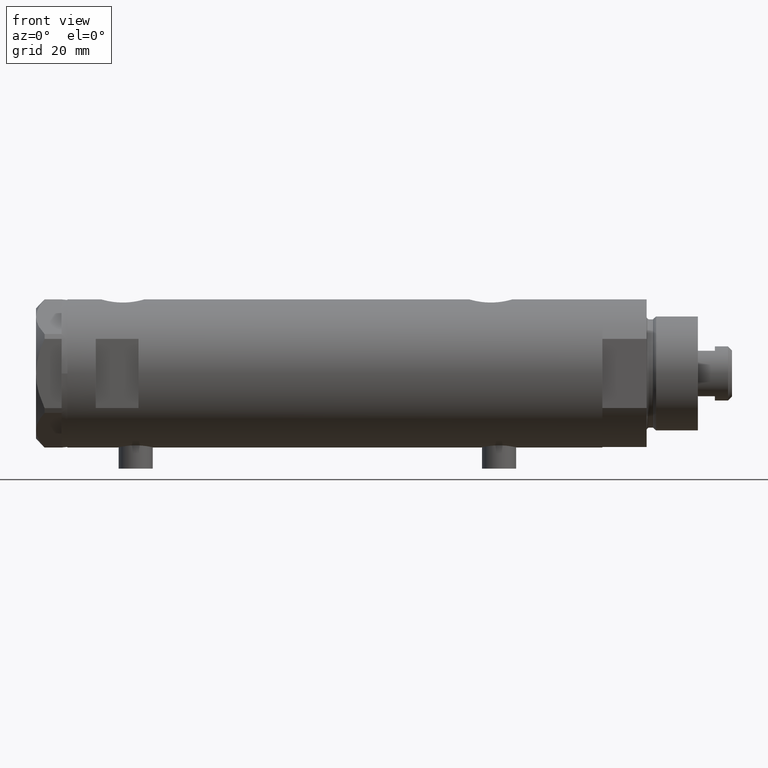
[diagram: clean part render]
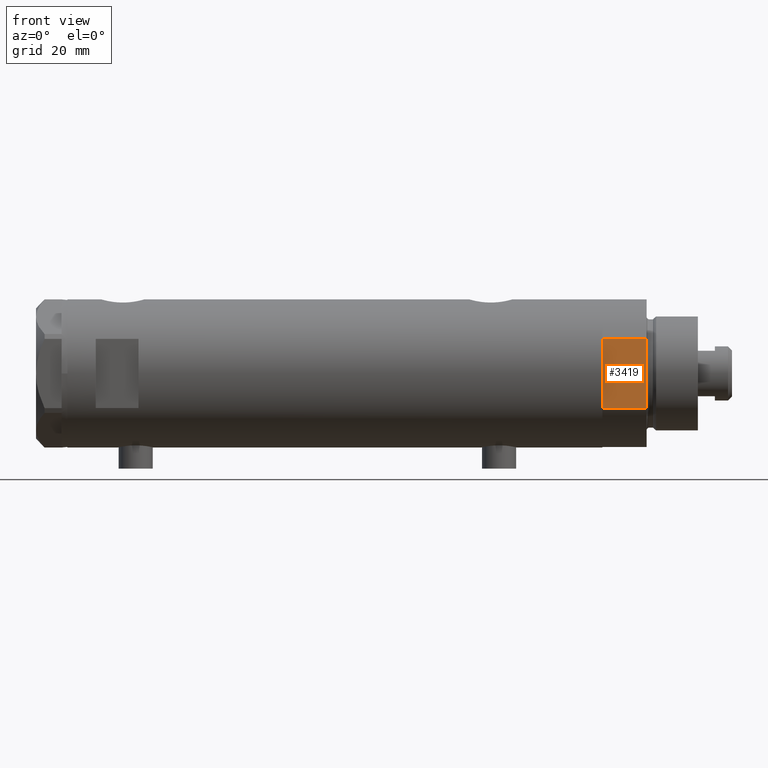
[diagram: same view with one face highlighted and labeled with its STEP entity id]
A machine part, front view. The second image highlights one B-rep face of the part: STEP entity #3419.
In plain terms, the highlighted planar face has unit normal (-0, 1, 0).
Its self-contained STEP definition (entity closure, byte-faithful):
#31 = EDGE_CURVE ( 'NONE', #841, #1377, #3502, .T. ) ;
#69 = AXIS2_PLACEMENT_3D ( 'NONE', #409, #4836, #4138 ) ;
#101 = CARTESIAN_POINT ( 'NONE',  ( 12.12435565298215323, -22.99999999999999645, 0.000000000000000000 ) ) ;
#394 = LINE ( 'NONE', #3010, #4615 ) ;
#409 = CARTESIAN_POINT ( 'NONE',  ( -12.12435565298215145, -22.99999999999999645, 0.000000000000000000 ) ) ;
#765 = LINE ( 'NONE', #4459, #1339 ) ;
#841 = VERTEX_POINT ( 'NONE', #3595 ) ;
#1076 = CARTESIAN_POINT ( 'NONE',  ( -12.12435565298215501, -22.99999999999999645, 0.000000000000000000 ) ) ;
#1085 = DIRECTION ( 'NONE',  ( -0.000000000000000000, -0.000000000000000000, 1.000000000000000000 ) ) ;
#1211 = DIRECTION ( 'NONE',  ( -1.000000000000000000, -0.000000000000000000, -0.000000000000000000 ) ) ;
#1278 = DIRECTION ( 'NONE',  ( -0.000000000000000000, -0.000000000000000000, 1.000000000000000000 ) ) ;
#1339 = VECTOR ( 'NONE', #1085, 1000.000000000000000 ) ;
#1377 = VERTEX_POINT ( 'NONE', #1076 ) ;
#1549 = ORIENTED_EDGE ( 'NONE', *, *, #4242, .F. ) ;
#1859 = VECTOR ( 'NONE', #3943, 1000.000000000000000 ) ;
#1928 = EDGE_CURVE ( 'NONE', #841, #2954, #2093, .T. ) ;
#1979 = EDGE_CURVE ( 'NONE', #2954, #3333, #394, .T. ) ;
#2093 = LINE ( 'NONE', #101, #2332 ) ;
#2332 = VECTOR ( 'NONE', #1278, 1000.000000000000000 ) ;
#2626 = PLANE ( 'NONE',  #69 ) ;
#2759 = CARTESIAN_POINT ( 'NONE',  ( -12.12435565298215145, -22.99999999999999645, 0.000000000000000000 ) ) ;
#2954 = VERTEX_POINT ( 'NONE', #3724 ) ;
#3010 = CARTESIAN_POINT ( 'NONE',  ( -12.12435565298215145, -22.99999999999999645, 15.50000000000000000 ) ) ;
#3113 = ORIENTED_EDGE ( 'NONE', *, *, #1928, .T. ) ;
#3333 = VERTEX_POINT ( 'NONE', #4510 ) ;
#3357 = FACE_OUTER_BOUND ( 'NONE', #4147, .T. ) ;
#3419 = ADVANCED_FACE ( 'NONE', ( #3357 ), #2626, .F. ) ;
#3489 = ORIENTED_EDGE ( 'NONE', *, *, #1979, .T. ) ;
#3502 = LINE ( 'NONE', #2759, #1859 ) ;
#3595 = CARTESIAN_POINT ( 'NONE',  ( 12.12435565298215323, -22.99999999999999645, 0.000000000000000000 ) ) ;
#3724 = CARTESIAN_POINT ( 'NONE',  ( 12.12435565298215323, -22.99999999999999645, 15.50000000000000000 ) ) ;
#3943 = DIRECTION ( 'NONE',  ( -1.000000000000000000, -0.000000000000000000, -0.000000000000000000 ) ) ;
#4138 = DIRECTION ( 'NONE',  ( 0.000000000000000000, -0.000000000000000000, 1.000000000000000000 ) ) ;
#4147 = EDGE_LOOP ( 'NONE', ( #3489, #1549, #4249, #3113 ) ) ;
#4242 = EDGE_CURVE ( 'NONE', #1377, #3333, #765, .T. ) ;
#4249 = ORIENTED_EDGE ( 'NONE', *, *, #31, .F. ) ;
#4459 = CARTESIAN_POINT ( 'NONE',  ( -12.12435565298215145, -22.99999999999999645, 0.000000000000000000 ) ) ;
#4510 = CARTESIAN_POINT ( 'NONE',  ( -12.12435565298215323, -22.99999999999999645, 15.50000000000000000 ) ) ;
#4615 = VECTOR ( 'NONE', #1211, 1000.000000000000000 ) ;
#4836 = DIRECTION ( 'NONE',  ( -0.000000000000000000, 1.000000000000000000, 0.000000000000000000 ) ) ;